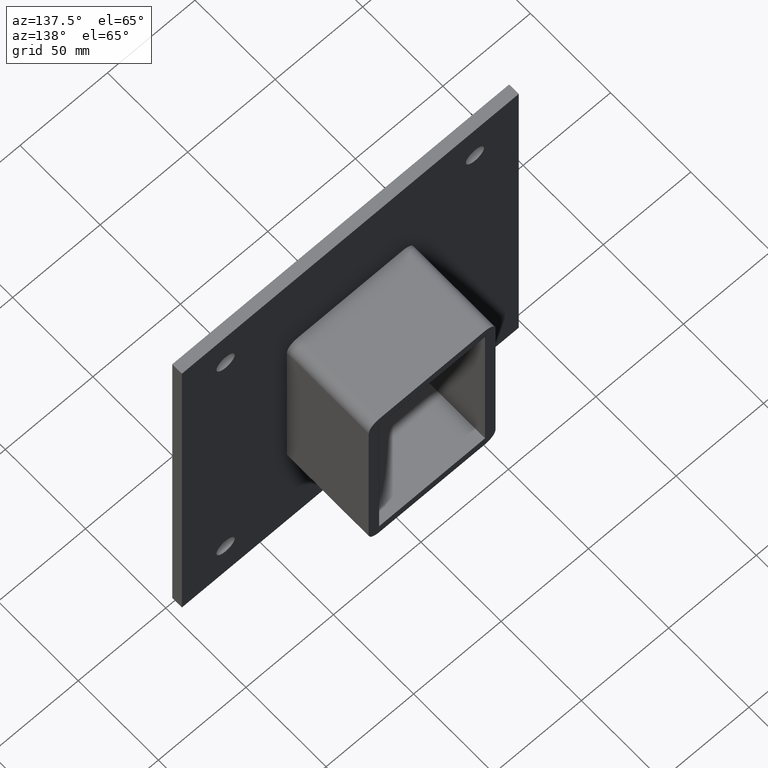
[diagram: clean part render]
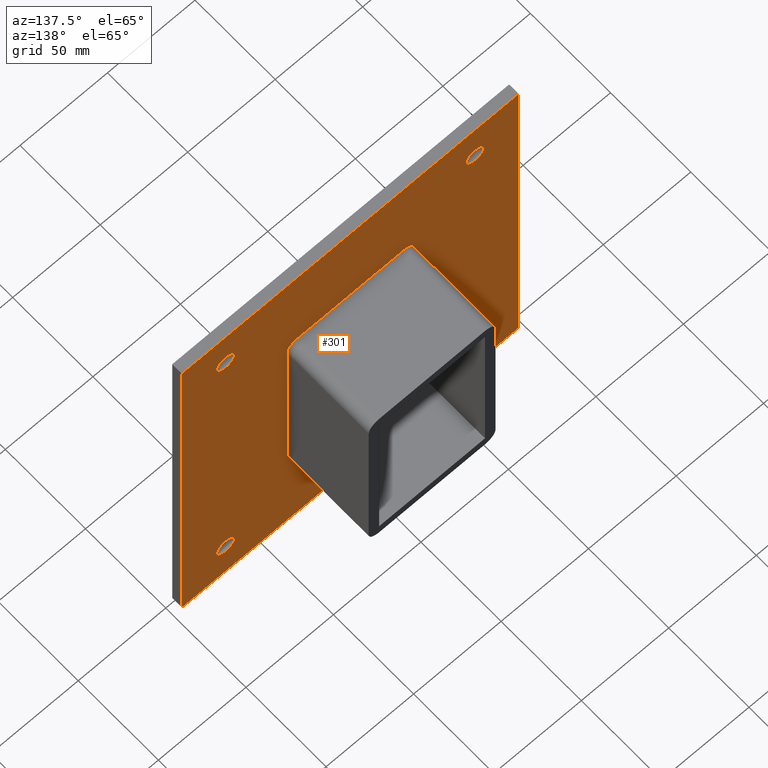
[diagram: same view with one face highlighted and labeled with its STEP entity id]
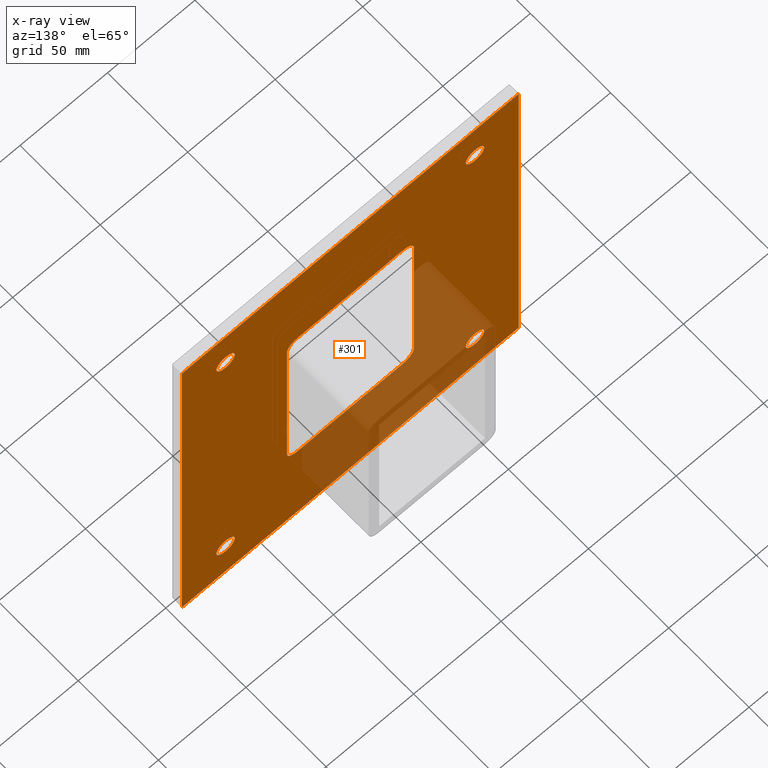
[diagram: x-ray of the same camera — body ghosted, the highlighted face saturated]
A machine part, auxiliary view. The second image highlights one B-rep face of the part: STEP entity #301.
The next image is the same camera in x-ray: the body ghosted, the highlighted face saturated — about 21% of this face is hidden behind the body in this view.
In plain terms, the highlighted planar face has unit normal (0, 1, 0).
Its self-contained STEP definition (entity closure, byte-faithful):
#73=CARTESIAN_POINT('',(-76.500000000000128,6.000000000000014,-91.499999999999943));
#74=VERTEX_POINT('',#73);
#75=CARTESIAN_POINT('',(-71.250000000000128,6.000000000000014,-91.499999999999943));
#76=DIRECTION('',(0.0,-1.0,0.0));
#77=DIRECTION('',(1.0,0.0,0.0));
#78=AXIS2_PLACEMENT_3D('',#75,#76,#77);
#79=CIRCLE('',#78,5.25);
#80=EDGE_CURVE('',#74,#74,#79,.T.);
#101=CARTESIAN_POINT('',(65.999999999999872,6.000000000000014,-91.5));
#102=VERTEX_POINT('',#101);
#103=CARTESIAN_POINT('',(71.249999999999872,6.000000000000014,-91.5));
#104=DIRECTION('',(0.0,-1.0,0.0));
#105=DIRECTION('',(1.0,0.0,0.0));
#106=AXIS2_PLACEMENT_3D('',#103,#104,#105);
#107=CIRCLE('',#106,5.25);
#108=EDGE_CURVE('',#102,#102,#107,.T.);
#129=CARTESIAN_POINT('',(-76.500000000000128,6.000000000000014,91.500000000000057));
#130=VERTEX_POINT('',#129);
#131=CARTESIAN_POINT('',(-71.250000000000128,6.000000000000014,91.500000000000057));
#132=DIRECTION('',(0.0,-1.0,0.0));
#133=DIRECTION('',(1.0,0.0,0.0));
#134=AXIS2_PLACEMENT_3D('',#131,#132,#133);
#135=CIRCLE('',#134,5.25);
#136=EDGE_CURVE('',#130,#130,#135,.T.);
#157=CARTESIAN_POINT('',(65.999999999999886,6.000000000000014,91.500000000000057));
#158=VERTEX_POINT('',#157);
#159=CARTESIAN_POINT('',(71.249999999999886,6.000000000000014,91.500000000000057));
#160=DIRECTION('',(0.0,-1.0,0.0));
#161=DIRECTION('',(1.0,0.0,0.0));
#162=AXIS2_PLACEMENT_3D('',#159,#160,#161);
#163=CIRCLE('',#162,5.25);
#164=EDGE_CURVE('',#158,#158,#163,.T.);
#180=CARTESIAN_POINT('',(-1.502911E-014,6.000000000000001,0.0));
#181=DIRECTION('',(0.0,1.0,0.0));
#182=DIRECTION('',(0.0,0.0,1.0));
#183=AXIS2_PLACEMENT_3D('',#180,#181,#182);
#184=PLANE('',#183);
#185=CARTESIAN_POINT('',(-96.25,6.000000000000001,116.5));
#186=VERTEX_POINT('',#185);
#187=CARTESIAN_POINT('',(96.25,6.000000000000001,116.5));
#188=VERTEX_POINT('',#187);
#189=CARTESIAN_POINT('',(-96.25,6.000000000000001,116.5));
#190=DIRECTION('',(1.0,0.0,0.0));
#191=VECTOR('',#190,192.5);
#192=LINE('',#189,#191);
#193=EDGE_CURVE('',#186,#188,#192,.T.);
#194=ORIENTED_EDGE('',*,*,#193,.T.);
#195=CARTESIAN_POINT('',(96.25,6.000000000000001,-116.5));
#196=VERTEX_POINT('',#195);
#197=CARTESIAN_POINT('',(96.249999999999986,6.000000000000001,116.5));
#198=DIRECTION('',(0.0,0.0,-1.0));
#199=VECTOR('',#198,233.0);
#200=LINE('',#197,#199);
#201=EDGE_CURVE('',#188,#196,#200,.T.);
#202=ORIENTED_EDGE('',*,*,#201,.T.);
#203=CARTESIAN_POINT('',(-96.25,6.000000000000001,-116.5));
#204=VERTEX_POINT('',#203);
#205=CARTESIAN_POINT('',(96.249999999999986,6.000000000000001,-116.5));
#206=DIRECTION('',(-1.0,0.0,0.0));
#207=VECTOR('',#206,192.5);
#208=LINE('',#205,#207);
#209=EDGE_CURVE('',#196,#204,#208,.T.);
#210=ORIENTED_EDGE('',*,*,#209,.T.);
#211=CARTESIAN_POINT('',(-96.25,6.000000000000001,-116.5));
#212=DIRECTION('',(0.0,0.0,1.0));
#213=VECTOR('',#212,233.0);
#214=LINE('',#211,#213);
#215=EDGE_CURVE('',#204,#186,#214,.T.);
#216=ORIENTED_EDGE('',*,*,#215,.T.);
#217=EDGE_LOOP('',(#194,#202,#210,#216));
#218=FACE_OUTER_BOUND('',#217,.T.);
#219=ORIENTED_EDGE('',*,*,#80,.T.);
#220=EDGE_LOOP('',(#219));
#221=FACE_BOUND('',#220,.T.);
#222=ORIENTED_EDGE('',*,*,#108,.T.);
#223=EDGE_LOOP('',(#222));
#224=FACE_BOUND('',#223,.T.);
#225=ORIENTED_EDGE('',*,*,#136,.T.);
#226=EDGE_LOOP('',(#225));
#227=FACE_BOUND('',#226,.T.);
#228=ORIENTED_EDGE('',*,*,#164,.T.);
#229=EDGE_LOOP('',(#228));
#230=FACE_BOUND('',#229,.T.);
#231=CARTESIAN_POINT('',(-36.25,6.000000000000001,50.500000000000057));
#232=VERTEX_POINT('',#231);
#233=CARTESIAN_POINT('',(-30.250000000000004,6.000000000000001,56.500000000000057));
#234=VERTEX_POINT('',#233);
#235=CARTESIAN_POINT('',(-30.250000000000004,6.000000000000001,50.500000000000057));
#236=DIRECTION('',(0.0,1.0,0.0));
#237=DIRECTION('',(-0.707106781186547,0.0,0.707106781186547));
#238=AXIS2_PLACEMENT_3D('',#235,#236,#237);
#239=CIRCLE('',#238,6.0);
#240=EDGE_CURVE('',#232,#234,#239,.T.);
#241=ORIENTED_EDGE('',*,*,#240,.F.);
#242=CARTESIAN_POINT('',(-36.25,6.000000000000001,-50.500000000000057));
#243=VERTEX_POINT('',#242);
#244=CARTESIAN_POINT('',(-36.25,6.000000000000001,-50.500000000000057));
#245=DIRECTION('',(0.0,0.0,1.0));
#246=VECTOR('',#245,101.00000000000011);
#247=LINE('',#244,#246);
#248=EDGE_CURVE('',#243,#232,#247,.T.);
#249=ORIENTED_EDGE('',*,*,#248,.F.);
#250=CARTESIAN_POINT('',(-30.250000000000004,6.000000000000001,-56.500000000000057));
#251=VERTEX_POINT('',#250);
#252=CARTESIAN_POINT('',(-30.250000000000004,6.000000000000001,-50.500000000000057));
#253=DIRECTION('',(0.0,1.0,0.0));
#254=DIRECTION('',(-0.707106781186547,0.0,-0.707106781186547));
#255=AXIS2_PLACEMENT_3D('',#252,#253,#254);
#256=CIRCLE('',#255,6.0);
#257=EDGE_CURVE('',#251,#243,#256,.T.);
#258=ORIENTED_EDGE('',*,*,#257,.F.);
#259=CARTESIAN_POINT('',(30.250000000000004,6.000000000000001,-56.500000000000057));
#260=VERTEX_POINT('',#259);
#261=CARTESIAN_POINT('',(30.250000000000004,6.000000000000001,-56.500000000000057));
#262=DIRECTION('',(-1.0,0.0,0.0));
#263=VECTOR('',#262,60.5);
#264=LINE('',#261,#263);
#265=EDGE_CURVE('',#260,#251,#264,.T.);
#266=ORIENTED_EDGE('',*,*,#265,.F.);
#267=CARTESIAN_POINT('',(36.25,6.000000000000001,-50.500000000000057));
#268=VERTEX_POINT('',#267);
#269=CARTESIAN_POINT('',(30.250000000000004,6.000000000000001,-50.500000000000057));
#270=DIRECTION('',(0.0,1.0,0.0));
#271=DIRECTION('',(0.707106781186547,0.0,-0.707106781186547));
#272=AXIS2_PLACEMENT_3D('',#269,#270,#271);
#273=CIRCLE('',#272,6.0);
#274=EDGE_CURVE('',#268,#260,#273,.T.);
#275=ORIENTED_EDGE('',*,*,#274,.F.);
#276=CARTESIAN_POINT('',(36.25,6.000000000000001,50.500000000000057));
#277=VERTEX_POINT('',#276);
#278=CARTESIAN_POINT('',(36.25,6.000000000000001,50.500000000000057));
#279=DIRECTION('',(0.0,0.0,-1.0));
#280=VECTOR('',#279,101.00000000000011);
#281=LINE('',#278,#280);
#282=EDGE_CURVE('',#277,#268,#281,.T.);
#283=ORIENTED_EDGE('',*,*,#282,.F.);
#284=CARTESIAN_POINT('',(30.250000000000004,6.000000000000001,56.500000000000057));
#285=VERTEX_POINT('',#284);
#286=CARTESIAN_POINT('',(30.250000000000004,6.000000000000001,50.500000000000057));
#287=DIRECTION('',(0.0,1.0,0.0));
#288=DIRECTION('',(0.707106781186547,0.0,0.707106781186547));
#289=AXIS2_PLACEMENT_3D('',#286,#287,#288);
#290=CIRCLE('',#289,6.0);
#291=EDGE_CURVE('',#285,#277,#290,.T.);
#292=ORIENTED_EDGE('',*,*,#291,.F.);
#293=CARTESIAN_POINT('',(-30.250000000000004,6.000000000000001,56.500000000000057));
#294=DIRECTION('',(1.0,0.0,0.0));
#295=VECTOR('',#294,60.500000000000014);
#296=LINE('',#293,#295);
#297=EDGE_CURVE('',#234,#285,#296,.T.);
#298=ORIENTED_EDGE('',*,*,#297,.F.);
#299=EDGE_LOOP('',(#241,#249,#258,#266,#275,#283,#292,#298));
#300=FACE_BOUND('',#299,.T.);
#301=ADVANCED_FACE('',(#218,#221,#224,#227,#230,#300),#184,.T.);